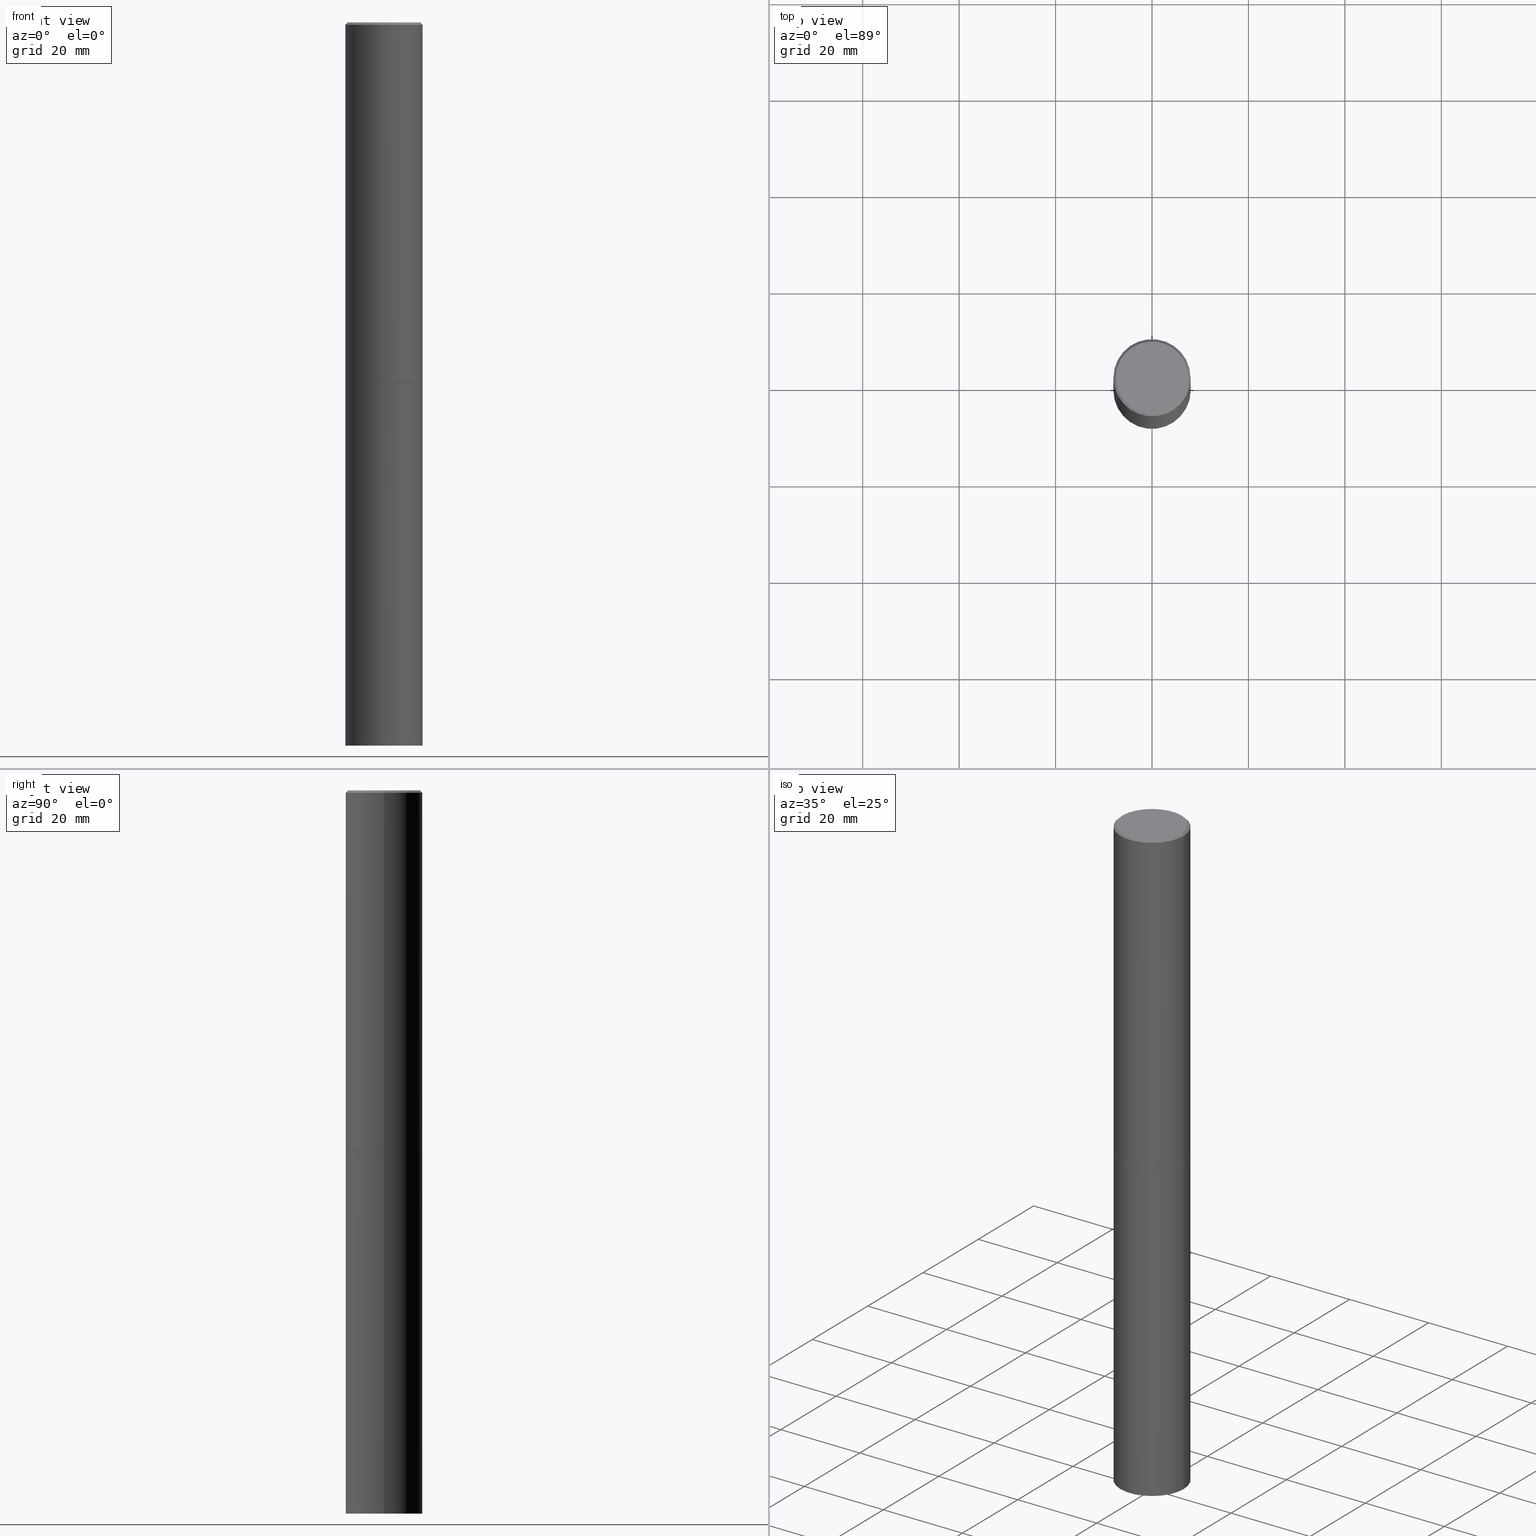
[diagram: canonical four-view strip — front | top / right | iso, engineering-drawing reading convention]
A machine part, canonical four-view strip (front | top / right | iso — engineering-drawing reading convention). The complete STEP part file that produces these views, byte-faithful:
ISO-10303-21;
HEADER;
FILE_DESCRIPTION (( 'STEP AP203' ),
    '1' );
FILE_NAME ('49488.STEP',
    '2024-02-28T23:48:37',
    ( '' ),
    ( '' ),
    'SwSTEP 2.0',
    'SolidWorks 2023',
    '' );
FILE_SCHEMA (( 'CONFIG_CONTROL_DESIGN' ));
ENDSEC;

DATA;
#1 = DIRECTION ( 'NONE',  ( 0.000000000000000000, 0.000000000000000000, 1.000000000000000000 ) ) ;
#2 = ADVANCED_FACE ( 'NONE', ( #137 ), #366, .T. ) ;
#3 = VECTOR ( 'NONE', #33, 39.37007874015748143 ) ;
#4 = CC_DESIGN_PERSON_AND_ORGANIZATION_ASSIGNMENT ( #308, #339, ( #176 ) ) ;
#5 = ORIENTED_EDGE ( 'NONE', *, *, #149, .T. ) ;
#6 = DIRECTION ( 'NONE',  ( 0.7071067811864026886, -2.468850131080739687E-15, 0.7071067811866923458 ) ) ;
#7 = EDGE_CURVE ( 'NONE', #284, #20, #109, .T. ) ;
#8 = CIRCLE ( 'NONE', #136, 0.3149500000000000077 ) ;
#9 = CARTESIAN_POINT ( 'NONE',  ( -0.3149500000000000077, 2.237854346276435590E-15, -1.549218606675782676E-29 ) ) ;
#10 = LINE ( 'NONE', #9, #61 ) ;
#11 = FACE_OUTER_BOUND ( 'NONE', #335, .T. ) ;
#12 = CONICAL_SURFACE ( 'NONE', #291, 0.3139500000000000624, 0.7853981633972434429 ) ;
#13 = AXIS2_PLACEMENT_3D ( 'NONE', #148, #293, #288 ) ;
#14 = DIRECTION ( 'NONE',  ( -2.445468806185136597E-29, 3.491481338843145583E-15, 1.000000000000000000 ) ) ;
#15 = ADVANCED_BREP_SHAPE_REPRESENTATION ( '49488', ( #79, #70, #238 ), #27 ) ;
#16 = CARTESIAN_POINT ( 'NONE',  ( -0.2949499999999996014, 2.094539655171992951E-15, 4.268512490085885145E-18 ) ) ;
#17 = EDGE_CURVE ( 'NONE', #129, #159, #68, .T. ) ;
#18 = EDGE_LOOP ( 'NONE', ( #280, #32 ) ) ;
#19 = CARTESIAN_POINT ( 'NONE',  ( 4.890937612370290675E-31, -6.982962677686316261E-17, -0.02000000000000007327 ) ) ;
#20 = VERTEX_POINT ( 'NONE', #353 ) ;
#21 = APPLICATION_CONTEXT ( 'configuration controlled 3d designs of mechanical parts and assemblies' ) ;
#22 = DIRECTION ( 'NONE',  ( -2.445468806185136597E-29, 3.491481338843145583E-15, 1.000000000000000000 ) ) ;
#23 = ADVANCED_FACE ( 'NONE', ( #37 ), #35, .F. ) ;
#24 = EDGE_LOOP ( 'NONE', ( #111, #276, #194, #245 ) ) ;
#25 = LINE ( 'NONE', #346, #197 ) ;
#26 = CIRCLE ( 'NONE', #230, 0.3149499999999996747 ) ;
#27 =( GEOMETRIC_REPRESENTATION_CONTEXT ( 3 ) GLOBAL_UNCERTAINTY_ASSIGNED_CONTEXT ( ( #78 ) ) GLOBAL_UNIT_ASSIGNED_CONTEXT ( ( #224, #170, #199 ) ) REPRESENTATION_CONTEXT ( 'NONE', 'WORKASPACE' ) );
#28 = AXIS2_PLACEMENT_3D ( 'NONE', #76, #356, #209 ) ;
#29 = ORIENTED_EDGE ( 'NONE', *, *, #7, .T. ) ;
#30 = EDGE_CURVE ( 'NONE', #20, #284, #114, .T. ) ;
#31 = CLOSED_SHELL ( 'NONE', ( #97, #124, #138, #314 ) ) ;
#32 = ORIENTED_EDGE ( 'NONE', *, *, #319, .F. ) ;
#33 = DIRECTION ( 'NONE',  ( -2.445468806185136877E-29, 3.491481338843145188E-15, 1.000000000000000000 ) ) ;
#34 = ADVANCED_FACE ( 'NONE', ( #173 ), #91, .T. ) ;
#35 = PLANE ( 'NONE',  #247 ) ;
#36 = AXIS2_PLACEMENT_3D ( 'NONE', #81, #140, #139 ) ;
#37 = FACE_OUTER_BOUND ( 'NONE', #18, .T. ) ;
#38 = DIRECTION ( 'NONE',  ( 1.000000000000000000, -6.982962677686266711E-15, 4.876176775795936353E-29 ) ) ;
#39 = CARTESIAN_POINT ( 'NONE',  ( -0.3149500000000000077, -1.322626565159373987E-14, -2.952700000000000102 ) ) ;
#40 = EDGE_LOOP ( 'NONE', ( #116, #257 ) ) ;
#41 = AXIS2_PLACEMENT_3D ( 'NONE', #231, #260, #177 ) ;
#42 = DIRECTION ( 'NONE',  ( 1.000000000000000000, -6.982962677686263555E-15, 0.000000000000000000 ) ) ;
#43 = FACE_OUTER_BOUND ( 'NONE', #345, .T. ) ;
#44 = CARTESIAN_POINT ( 'NONE',  ( 7.220735744022852519E-29, -1.030929694920215502E-14, -2.952700000000000102 ) ) ;
#45 = ORIENTED_EDGE ( 'NONE', *, *, #344, .F. ) ;
#46 = DATE_AND_TIME ( #302, #204 ) ;
#47 = DIRECTION ( 'NONE',  ( -2.445468806185136597E-29, 3.491481338843145583E-15, 1.000000000000000000 ) ) ;
#48 = CIRCLE ( 'NONE', #232, 0.3149500000000000077 ) ;
#49 = ORIENTED_EDGE ( 'NONE', *, *, #50, .F. ) ;
#50 = EDGE_CURVE ( 'NONE', #129, #108, #295, .T. ) ;
#51 = VERTEX_POINT ( 'NONE', #174 ) ;
#52 = COORDINATED_UNIVERSAL_TIME_OFFSET ( 5, 0, .BEHIND. ) ;
#53 = APPLICATION_PROTOCOL_DEFINITION ( 'international standard', 'config_control_design', 1994, #21 ) ;
#54 = ORIENTED_EDGE ( 'NONE', *, *, #87, .T. ) ;
#55 = CALENDAR_DATE ( 2024, 28, 2 ) ;
#56 = LOCAL_TIME ( 18, 48, 37.00000000000000000, #313 ) ;
#57 = CARTESIAN_POINT ( 'NONE',  ( 0.000000000000000000, 0.000000000000000000, 0.000000000000000000 ) ) ;
#58 = APPROVAL ( #251, 'UNSPECIFIED' ) ;
#59 = LINE ( 'NONE', #198, #90 ) ;
#60 = SECURITY_CLASSIFICATION ( '', '', #187 ) ;
#61 = VECTOR ( 'NONE', #292, 39.37007874015748143 ) ;
#62 = CARTESIAN_POINT ( 'NONE',  ( 0.3149500000000000077, -1.250508956320060346E-14, -2.951700000000000212 ) ) ;
#63 = DIRECTION ( 'NONE',  ( 1.000000000000000000, -6.982962677686263555E-15, 0.000000000000000000 ) ) ;
#64 = CARTESIAN_POINT ( 'NONE',  ( 7.220735744022853640E-29, -1.030929694920215659E-14, -2.952700000000000546 ) ) ;
#65 = APPROVAL_PERSON_ORGANIZATION ( #156, #157, #277 ) ;
#66 = ADVANCED_FACE ( 'NONE', ( #146 ), #250, .T. ) ;
#67 = AXIS2_PLACEMENT_3D ( 'NONE', #120, #263, #63 ) ;
#68 = LINE ( 'NONE', #94, #282 ) ;
#69 = DIRECTION ( 'NONE',  ( -2.438088387897960049E-29, 3.491481338843145188E-15, 1.000000000000000000 ) ) ;
#70 = MANIFOLD_SOLID_BREP ( 'Body-Move/Copy2[2]', #326 ) ;
#71 = FACE_OUTER_BOUND ( 'NONE', #216, .T. ) ;
#72 = CIRCLE ( 'NONE', #320, 0.3149500000000000077 ) ;
#73 = CARTESIAN_POINT ( 'NONE',  ( 2.059624841783561302E-15, 0.2949499999999996014, -1.027678164646734185E-15 ) ) ;
#74 = EDGE_CURVE ( 'NONE', #284, #85, #10, .T. ) ;
#75 = COORDINATED_UNIVERSAL_TIME_OFFSET ( 5, 0, .BEHIND. ) ;
#76 = CARTESIAN_POINT ( 'NONE',  ( 7.220735744022853640E-29, -1.030929694920215659E-14, -2.952700000000000546 ) ) ;
#77 = ORIENTED_EDGE ( 'NONE', *, *, #144, .F. ) ;
#78 = UNCERTAINTY_MEASURE_WITH_UNIT (LENGTH_MEASURE( 1.000000000000000082E-05 ), #224, 'distance_accuracy_value', 'NONE');
#79 = MANIFOLD_SOLID_BREP ( 'Body-Move/Copy2[1]', #31 ) ;
#80 = VERTEX_POINT ( 'NONE', #121 ) ;
#81 = CARTESIAN_POINT ( 'NONE',  ( -1.043851414335219820E-46, 1.490343170380447200E-32, 4.268512490100411279E-18 ) ) ;
#82 = AXIS2_PLACEMENT_3D ( 'NONE', #57, #14, #321 ) ;
#83 = ORIENTED_EDGE ( 'NONE', *, *, #290, .F. ) ;
#84 = CARTESIAN_POINT ( 'NONE',  ( 0.000000000000000000, 0.000000000000000000, 0.000000000000000000 ) ) ;
#85 = VERTEX_POINT ( 'NONE', #39 ) ;
#86 = PERSON_AND_ORGANIZATION ( #215, #127 ) ;
#87 = EDGE_CURVE ( 'NONE', #338, #80, #233, .T. ) ;
#88 = ORIENTED_EDGE ( 'NONE', *, *, #30, .T. ) ;
#89 = DIRECTION ( 'NONE',  ( 1.000000000000000000, -6.982962677686263555E-15, 0.000000000000000000 ) ) ;
#90 = VECTOR ( 'NONE', #318, 39.37007874015748143 ) ;
#91 = CONICAL_SURFACE ( 'NONE', #341, 0.3149499999999996747, 0.7853981633974479459 ) ;
#92 = DIRECTION ( 'NONE',  ( -2.445468806185136597E-29, 3.491481338843145583E-15, 1.000000000000000000 ) ) ;
#93 = VECTOR ( 'NONE', #6, 39.37007874015748143 ) ;
#94 = CARTESIAN_POINT ( 'NONE',  ( -0.3149499999999998967, 2.237854346276434801E-15, -1.549218606675782116E-29 ) ) ;
#95 = DIMENSIONAL_EXPONENTS ( 1.000000000000000000, 0.000000000000000000, 0.000000000000000000, 0.000000000000000000, 0.000000000000000000, 0.000000000000000000, 0.000000000000000000 ) ;
#96 = CYLINDRICAL_SURFACE ( 'NONE', #364, 0.3149500000000000077 ) ;
#97 = ADVANCED_FACE ( 'NONE', ( #98 ), #96, .T. ) ;
#98 = FACE_OUTER_BOUND ( 'NONE', #142, .T. ) ;
#99 = AXIS2_PLACEMENT_3D ( 'NONE', #104, #214, #340 ) ;
#100 = CIRCLE ( 'NONE', #296, 0.3149499999999996747 ) ;
#101 = DIRECTION ( 'NONE',  ( 2.438088387897960049E-29, -3.491481338843145188E-15, -1.000000000000000000 ) ) ;
#102 = PLANE ( 'NONE',  #256 ) ;
#103 = DATE_AND_TIME ( #221, #150 ) ;
#104 = CARTESIAN_POINT ( 'NONE',  ( 7.220735744022853640E-29, -1.030929694920215659E-14, -2.952700000000000546 ) ) ;
#105 = ORIENTED_EDGE ( 'NONE', *, *, #115, .T. ) ;
#106 = PERSON_AND_ORGANIZATION ( #215, #127 ) ;
#107 = FACE_OUTER_BOUND ( 'NONE', #242, .T. ) ;
#108 = VERTEX_POINT ( 'NONE', #62 ) ;
#109 = CIRCLE ( 'NONE', #67, 0.3149500000000000077 ) ;
#110 = ORIENTED_EDGE ( 'NONE', *, *, #87, .F. ) ;
#111 = ORIENTED_EDGE ( 'NONE', *, *, #329, .T. ) ;
#112 = CARTESIAN_POINT ( 'NONE',  ( 7.218290275216666916E-29, -1.030580546786331359E-14, -2.951700000000000212 ) ) ;
#113 = APPROVAL_PERSON_ORGANIZATION ( #278, #58, #195 ) ;
#114 = CIRCLE ( 'NONE', #41, 0.3149500000000000077 ) ;
#115 = EDGE_CURVE ( 'NONE', #304, #338, #134, .T. ) ;
#116 = ORIENTED_EDGE ( 'NONE', *, *, #30, .F. ) ;
#117 = APPROVAL_PERSON_ORGANIZATION ( #212, #154, #332 ) ;
#118 = CARTESIAN_POINT ( 'NONE',  ( 7.220735744022852519E-29, -1.030929694920215502E-14, -2.952700000000000102 ) ) ;
#119 = EDGE_CURVE ( 'NONE', #108, #80, #351, .T. ) ;
#120 = CARTESIAN_POINT ( 'NONE',  ( 1.444171603492632270E-28, -2.061894304653819197E-14, -5.905499999999999972 ) ) ;
#121 = CARTESIAN_POINT ( 'NONE',  ( 0.3149499999999996747, -2.230543471175005083E-15, -0.02000000000000007327 ) ) ;
#122 = CARTESIAN_POINT ( 'NONE',  ( 2.199284095337361657E-15, 0.3149499999999896827, -2.952700000000000990 ) ) ;
#123 = AXIS2_PLACEMENT_3D ( 'NONE', #128, #241, #218 ) ;
#124 = ADVANCED_FACE ( 'NONE', ( #352 ), #147, .T. ) ;
#125 = CYLINDRICAL_SURFACE ( 'NONE', #123, 0.3149500000000000077 ) ;
#126 = DATE_TIME_ROLE ( 'classification_date' ) ;
#127 = ORGANIZATION ( 'UNSPECIFIED', 'UNSPECIFIED', '' ) ;
#128 = CARTESIAN_POINT ( 'NONE',  ( 0.000000000000000000, 0.000000000000000000, 0.000000000000000000 ) ) ;
#129 = VERTEX_POINT ( 'NONE', #207 ) ;
#130 = APPROVAL_STATUS ( 'not_yet_approved' ) ;
#131 = DIRECTION ( 'NONE',  ( -2.445468806185136597E-29, 3.491481338843145583E-15, 1.000000000000000000 ) ) ;
#132 = ORIENTED_EDGE ( 'NONE', *, *, #281, .T. ) ;
#133 = ORIENTED_EDGE ( 'NONE', *, *, #323, .T. ) ;
#134 = CIRCLE ( 'NONE', #264, 0.2949499999999996014 ) ;
#135 = AXIS2_PLACEMENT_3D ( 'NONE', #213, #131, #305 ) ;
#136 = AXIS2_PLACEMENT_3D ( 'NONE', #118, #303, #42 ) ;
#137 = FACE_OUTER_BOUND ( 'NONE', #24, .T. ) ;
#138 = ADVANCED_FACE ( 'NONE', ( #11 ), #324, .F. ) ;
#139 = DIRECTION ( 'NONE',  ( 1.000000000000000000, -6.982962677686266711E-15, 4.876053491004741073E-29 ) ) ;
#140 = DIRECTION ( 'NONE',  ( -2.445468806185136597E-29, 3.491481338843145583E-15, 1.000000000000000000 ) ) ;
#141 = EDGE_CURVE ( 'NONE', #163, #108, #200, .T. ) ;
#142 = EDGE_LOOP ( 'NONE', ( #88, #312, #219, #360 ) ) ;
#143 = DIRECTION ( 'NONE',  ( -1.000000000000000000, 6.982962677686265922E-15, -4.876176775795935793E-29 ) ) ;
#144 = EDGE_CURVE ( 'NONE', #85, #196, #8, .T. ) ;
#145 = CARTESIAN_POINT ( 'NONE',  ( 4.890937612370290675E-31, -6.982962677686316261E-17, -0.02000000000000007327 ) ) ;
#146 = FACE_OUTER_BOUND ( 'NONE', #343, .T. ) ;
#147 = PLANE ( 'NONE',  #206 ) ;
#148 = CARTESIAN_POINT ( 'NONE',  ( 7.218290275216666916E-29, -1.030580546786331359E-14, -2.951700000000000212 ) ) ;
#149 = EDGE_CURVE ( 'NONE', #163, #51, #350, .T. ) ;
#150 = LOCAL_TIME ( 18, 48, 37.00000000000000000, #75 ) ;
#151 = ORIENTED_EDGE ( 'NONE', *, *, #115, .F. ) ;
#152 = VECTOR ( 'NONE', #289, 39.37007874015748143 ) ;
#153 = DIRECTION ( 'NONE',  ( -2.445468806185136597E-29, 3.491481338843145583E-15, 1.000000000000000000 ) ) ;
#154 = APPROVAL ( #243, 'UNSPECIFIED' ) ;
#155 = DIRECTION ( 'NONE',  ( -2.445468806185136597E-29, 3.491481338843145583E-15, 1.000000000000000000 ) ) ;
#156 = PERSON_AND_ORGANIZATION ( #215, #127 ) ;
#157 = APPROVAL ( #130, 'UNSPECIFIED' ) ;
#158 = DIRECTION ( 'NONE',  ( -1.000000000000000000, 6.982962677686265922E-15, -4.876176775795935793E-29 ) ) ;
#159 = VERTEX_POINT ( 'NONE', #301 ) ;
#160 = CONICAL_SURFACE ( 'NONE', #135, 0.3139500000000000624, 0.7853981633972434429 ) ;
#161 = APPROVAL_DATE_TIME ( #46, #157 ) ;
#162 = DIRECTION ( 'NONE',  ( 1.000000000000000000, -6.982962677686266711E-15, 0.000000000000000000 ) ) ;
#163 = VERTEX_POINT ( 'NONE', #185 ) ;
#164 = PERSON_AND_ORGANIZATION_ROLE ( 'classification_officer' ) ;
#165 = ORIENTED_EDGE ( 'NONE', *, *, #50, .T. ) ;
#166 = APPROVAL_DATE_TIME ( #336, #154 ) ;
#167 = ORIENTED_EDGE ( 'NONE', *, *, #144, .T. ) ;
#168 = DATE_AND_TIME ( #55, #56 ) ;
#169 = ORIENTED_EDGE ( 'NONE', *, *, #171, .T. ) ;
#170 =( NAMED_UNIT ( * ) PLANE_ANGLE_UNIT ( ) SI_UNIT ( $, .RADIAN. ) );
#171 = EDGE_CURVE ( 'NONE', #196, #85, #48, .T. ) ;
#172 = CARTESIAN_POINT ( 'NONE',  ( 7.220735744022853640E-29, -1.030929694920215659E-14, -2.952700000000000546 ) ) ;
#173 = FACE_OUTER_BOUND ( 'NONE', #274, .T. ) ;
#174 = CARTESIAN_POINT ( 'NONE',  ( -0.3139500000000000624, -8.073249575935100004E-15, -2.952700000000000546 ) ) ;
#175 = ADVANCED_FACE ( 'NONE', ( #71 ), #102, .F. ) ;
#176 = PRODUCT_DEFINITION_FORMATION_WITH_SPECIFIED_SOURCE ( 'ANY', '', #286, .NOT_KNOWN. ) ;
#177 = DIRECTION ( 'NONE',  ( 1.000000000000000000, -6.982962677686263555E-15, 0.000000000000000000 ) ) ;
#178 = DIRECTION ( 'NONE',  ( 2.445468806185136597E-29, -3.491481338843145583E-15, -1.000000000000000000 ) ) ;
#179 = DIRECTION ( 'NONE',  ( -1.000000000000000000, 6.982962677686265922E-15, -4.876176775795935793E-29 ) ) ;
#180 = PRODUCT_RELATED_PRODUCT_CATEGORY ( 'detail', '', ( #286 ) ) ;
#181 = CC_DESIGN_APPROVAL ( #157, ( #176 ) ) ;
#182 = CARTESIAN_POINT ( 'NONE',  ( 0.3149500000000000077, -1.250858104453944331E-14, -2.952700000000000102 ) ) ;
#183 = PRODUCT_DEFINITION ( 'UNKNOWN', '', #176, #269 ) ;
#184 = CALENDAR_DATE ( 2024, 28, 2 ) ;
#185 = CARTESIAN_POINT ( 'NONE',  ( 0.3139500000000000624, -1.250159808186176045E-14, -2.952700000000000546 ) ) ;
#186 = ORIENTED_EDGE ( 'NONE', *, *, #344, .T. ) ;
#187 = SECURITY_CLASSIFICATION_LEVEL ( 'unclassified' ) ;
#188 = CARTESIAN_POINT ( 'NONE',  ( 0.000000000000000000, 0.000000000000000000, 0.000000000000000000 ) ) ;
#189 = ORIENTED_EDGE ( 'NONE', *, *, #281, .F. ) ;
#190 = DATE_AND_TIME ( #357, #271 ) ;
#191 = CARTESIAN_POINT ( 'NONE',  ( -0.3149500000000000077, -1.322626565159373987E-14, -5.905499999999999972 ) ) ;
#192 = ORIENTED_EDGE ( 'NONE', *, *, #329, .F. ) ;
#193 = DIRECTION ( 'NONE',  ( 1.000000000000000000, 0.000000000000000000, 0.000000000000000000 ) ) ;
#194 = ORIENTED_EDGE ( 'NONE', *, *, #267, .F. ) ;
#195 = APPROVAL_ROLE ( '' ) ;
#196 = VERTEX_POINT ( 'NONE', #182 ) ;
#197 = VECTOR ( 'NONE', #362, 39.37007874015748143 ) ;
#198 = CARTESIAN_POINT ( 'NONE',  ( 0.3149500000000000077, -2.199284095337289871E-15, 1.535751875536930130E-29 ) ) ;
#199 =( NAMED_UNIT ( * ) SI_UNIT ( $, .STERADIAN. ) SOLID_ANGLE_UNIT ( ) );
#200 = LINE ( 'NONE', #258, #93 ) ;
#201 = AXIS2_PLACEMENT_3D ( 'NONE', #122, #328, #179 ) ;
#202 = DIRECTION ( 'NONE',  ( -2.445468806185136877E-29, 3.491481338843145188E-15, 1.000000000000000000 ) ) ;
#203 = CARTESIAN_POINT ( 'NONE',  ( 0.3149499999999998967, -2.199284095337288688E-15, 1.535751875536929289E-29 ) ) ;
#204 = LOCAL_TIME ( 18, 48, 37.00000000000000000, #217 ) ;
#205 = CARTESIAN_POINT ( 'NONE',  ( -1.043851414335219820E-46, 1.490343170380447200E-32, 4.268512490100411279E-18 ) ) ;
#206 = AXIS2_PLACEMENT_3D ( 'NONE', #261, #101, #143 ) ;
#207 = CARTESIAN_POINT ( 'NONE',  ( -0.3149500000000000077, -2.949963201043651274E-15, -2.951700000000000212 ) ) ;
#208 = CC_DESIGN_PERSON_AND_ORGANIZATION_ASSIGNMENT ( #106, #164, ( #60 ) ) ;
#209 = DIRECTION ( 'NONE',  ( 1.000000000000000000, -6.982962677686265133E-15, 0.000000000000000000 ) ) ;
#210 = PERSON_AND_ORGANIZATION ( #215, #127 ) ;
#211 = ADVANCED_FACE ( 'NONE', ( #43 ), #160, .T. ) ;
#212 = PERSON_AND_ORGANIZATION ( #215, #127 ) ;
#213 = CARTESIAN_POINT ( 'NONE',  ( 7.220735744022853640E-29, -1.030929694920215659E-14, -2.952700000000000546 ) ) ;
#214 = DIRECTION ( 'NONE',  ( -2.445468806185136597E-29, 3.491481338843145583E-15, 1.000000000000000000 ) ) ;
#215 = PERSON ( 'UNSPECIFIED', 'UNSPECIFIED', 'UNSPECIFIED', ('UNSPECIFIED'), ('UNSPECIFIED'), ('UNSPECIFIED') ) ;
#216 = EDGE_LOOP ( 'NONE', ( #105, #133 ) ) ;
#217 = COORDINATED_UNIVERSAL_TIME_OFFSET ( 5, 0, .BEHIND. ) ;
#218 = DIRECTION ( 'NONE',  ( 1.000000000000000000, -6.982962677686266711E-15, 4.876176775795936353E-29 ) ) ;
#219 = ORIENTED_EDGE ( 'NONE', *, *, #171, .F. ) ;
#220 = CIRCLE ( 'NONE', #36, 0.2949499999999996014 ) ;
#221 = CALENDAR_DATE ( 2024, 28, 2 ) ;
#222 = APPLICATION_PROTOCOL_DEFINITION ( 'international standard', 'config_control_design', 1994, #317 ) ;
#223 = ORIENTED_EDGE ( 'NONE', *, *, #119, .T. ) ;
#224 =( CONVERSION_BASED_UNIT ( 'INCH', #285 ) LENGTH_UNIT ( ) NAMED_UNIT ( #95 ) );
#225 = ORIENTED_EDGE ( 'NONE', *, *, #17, .F. ) ;
#226 = PERSON_AND_ORGANIZATION_ROLE ( 'design_owner' ) ;
#227 = CC_DESIGN_DATE_AND_TIME_ASSIGNMENT ( #190, #300, ( #183 ) ) ;
#228 = CIRCLE ( 'NONE', #99, 0.3139500000000000624 ) ;
#229 = CARTESIAN_POINT ( 'NONE',  ( 4.890937612370290675E-31, -6.982962677686316261E-17, -0.02000000000000007327 ) ) ;
#230 = AXIS2_PLACEMENT_3D ( 'NONE', #19, #266, #270 ) ;
#231 = CARTESIAN_POINT ( 'NONE',  ( 1.444171603492632270E-28, -2.061894304653819197E-14, -5.905499999999999972 ) ) ;
#232 = AXIS2_PLACEMENT_3D ( 'NONE', #44, #153, #358 ) ;
#233 = LINE ( 'NONE', #234, #152 ) ;
#234 = CARTESIAN_POINT ( 'NONE',  ( 0.3149499999999996747, -2.230543471175005083E-15, -0.02000000000000007327 ) ) ;
#235 = DIRECTION ( 'NONE',  ( -1.000000000000000000, 6.982962677686266711E-15, 0.000000000000000000 ) ) ;
#236 = LINE ( 'NONE', #297, #262 ) ;
#237 = PERSON_AND_ORGANIZATION_ROLE ( 'creator' ) ;
#238 = AXIS2_PLACEMENT_3D ( 'NONE', #84, #1, #193 ) ;
#239 = PRODUCT_DEFINITION_SHAPE ( 'NONE', 'NONE',  #183 ) ;
#240 = COORDINATED_UNIVERSAL_TIME_OFFSET ( 5, 0, .BEHIND. ) ;
#241 = DIRECTION ( 'NONE',  ( -2.445468806185136597E-29, 3.491481338843145583E-15, 1.000000000000000000 ) ) ;
#242 = EDGE_LOOP ( 'NONE', ( #315, #29, #252, #77 ) ) ;
#243 = APPROVAL_STATUS ( 'not_yet_approved' ) ;
#244 = CYLINDRICAL_SURFACE ( 'NONE', #325, 0.3149499999999998967 ) ;
#245 = ORIENTED_EDGE ( 'NONE', *, *, #119, .F. ) ;
#246 = DIRECTION ( 'NONE',  ( -2.445468806185136597E-29, 3.491481338843145583E-15, 1.000000000000000000 ) ) ;
#247 = AXIS2_PLACEMENT_3D ( 'NONE', #64, #69, #354 ) ;
#248 = ORIENTED_EDGE ( 'NONE', *, *, #141, .F. ) ;
#249 = CC_DESIGN_DATE_AND_TIME_ASSIGNMENT ( #103, #126, ( #60 ) ) ;
#250 = CONICAL_SURFACE ( 'NONE', #299, 0.3149499999999996747, 0.7853981633974479459 ) ;
#251 = APPROVAL_STATUS ( 'not_yet_approved' ) ;
#252 = ORIENTED_EDGE ( 'NONE', *, *, #334, .T. ) ;
#253 = CC_DESIGN_PERSON_AND_ORGANIZATION_ASSIGNMENT ( #86, #226, ( #286 ) ) ;
#254 = PERSON_AND_ORGANIZATION ( #215, #127 ) ;
#255 = DIRECTION ( 'NONE',  ( 1.000000000000000000, -6.982962677686265133E-15, 0.000000000000000000 ) ) ;
#256 = AXIS2_PLACEMENT_3D ( 'NONE', #73, #330, #158 ) ;
#257 = ORIENTED_EDGE ( 'NONE', *, *, #7, .F. ) ;
#258 = CARTESIAN_POINT ( 'NONE',  ( 0.3139500000000000624, -1.250159808186176045E-14, -2.952700000000000546 ) ) ;
#259 = DIRECTION ( 'NONE',  ( -2.445468806185136597E-29, 3.491481338843145583E-15, 1.000000000000000000 ) ) ;
#260 = DIRECTION ( 'NONE',  ( -2.445468806185136597E-29, 3.491481338843145583E-15, 1.000000000000000000 ) ) ;
#261 = CARTESIAN_POINT ( 'NONE',  ( 2.199284095337433838E-15, 0.3149499999999793576, -5.905500000000000860 ) ) ;
#262 = VECTOR ( 'NONE', #273, 39.37007874015748143 ) ;
#263 = DIRECTION ( 'NONE',  ( -2.445468806185136597E-29, 3.491481338843145583E-15, 1.000000000000000000 ) ) ;
#264 = AXIS2_PLACEMENT_3D ( 'NONE', #205, #259, #327 ) ;
#265 = ORIENTED_EDGE ( 'NONE', *, *, #290, .T. ) ;
#266 = DIRECTION ( 'NONE',  ( -2.445468806185136597E-29, 3.491481338843145583E-15, 1.000000000000000000 ) ) ;
#267 = EDGE_CURVE ( 'NONE', #80, #159, #100, .T. ) ;
#268 = SHAPE_DEFINITION_REPRESENTATION ( #239, #15 ) ;
#269 = DESIGN_CONTEXT ( 'detailed design', #317, 'design' ) ;
#270 = DIRECTION ( 'NONE',  ( 1.000000000000000000, -6.982962677686266711E-15, 0.000000000000000000 ) ) ;
#271 = LOCAL_TIME ( 18, 48, 37.00000000000000000, #52 ) ;
#272 = ORIENTED_EDGE ( 'NONE', *, *, #323, .F. ) ;
#273 = DIRECTION ( 'NONE',  ( -0.7071067811864026886, 7.493145998869830357E-15, 0.7071067811866923458 ) ) ;
#274 = EDGE_LOOP ( 'NONE', ( #272, #54, #307, #45 ) ) ;
#275 = CC_DESIGN_PERSON_AND_ORGANIZATION_ASSIGNMENT ( #210, #355, ( #176 ) ) ;
#276 = ORIENTED_EDGE ( 'NONE', *, *, #17, .T. ) ;
#277 = APPROVAL_ROLE ( '' ) ;
#278 = PERSON_AND_ORGANIZATION ( #215, #127 ) ;
#279 = CC_DESIGN_APPROVAL ( #58, ( #183 ) ) ;
#280 = ORIENTED_EDGE ( 'NONE', *, *, #149, .F. ) ;
#281 = EDGE_CURVE ( 'NONE', #51, #129, #236, .T. ) ;
#282 = VECTOR ( 'NONE', #202, 39.37007874015748143 ) ;
#283 = APPROVAL_DATE_TIME ( #168, #58 ) ;
#284 = VERTEX_POINT ( 'NONE', #191 ) ;
#285 = LENGTH_MEASURE_WITH_UNIT ( LENGTH_MEASURE( 0.02539999999999999897 ), #287 );
#286 = PRODUCT ( '49488', '49488', '', ( #347 ) ) ;
#287 =( LENGTH_UNIT ( ) NAMED_UNIT ( * ) SI_UNIT ( $, .METRE. ) );
#288 = DIRECTION ( 'NONE',  ( 1.000000000000000000, -6.982962677686263555E-15, 0.000000000000000000 ) ) ;
#289 = DIRECTION ( 'NONE',  ( 0.7071067811865472397, -7.319954787623254468E-15, -0.7071067811865477948 ) ) ;
#290 = EDGE_CURVE ( 'NONE', #159, #80, #26, .T. ) ;
#291 = AXIS2_PLACEMENT_3D ( 'NONE', #172, #246, #255 ) ;
#292 = DIRECTION ( 'NONE',  ( -2.445468806185136877E-29, 3.491481338843145188E-15, 1.000000000000000000 ) ) ;
#293 = DIRECTION ( 'NONE',  ( -2.445468806185136597E-29, 3.491481338843145583E-15, 1.000000000000000000 ) ) ;
#294 = DIRECTION ( 'NONE',  ( 2.445468806185136597E-29, -3.491481338843145583E-15, -1.000000000000000000 ) ) ;
#295 = CIRCLE ( 'NONE', #13, 0.3149500000000000077 ) ;
#296 = AXIS2_PLACEMENT_3D ( 'NONE', #309, #47, #162 ) ;
#297 = CARTESIAN_POINT ( 'NONE',  ( -0.3139500000000000624, -8.078548030283322406E-15, -2.952700000000000546 ) ) ;
#298 = ADVANCED_FACE ( 'NONE', ( #333 ), #244, .T. ) ;
#299 = AXIS2_PLACEMENT_3D ( 'NONE', #229, #294, #235 ) ;
#300 = DATE_TIME_ROLE ( 'creation_date' ) ;
#301 = CARTESIAN_POINT ( 'NONE',  ( -0.3149499999999996747, 2.129454468560424206E-15, -0.02000000000000007327 ) ) ;
#302 = CALENDAR_DATE ( 2024, 28, 2 ) ;
#303 = DIRECTION ( 'NONE',  ( -2.445468806185136597E-29, 3.491481338843145583E-15, 1.000000000000000000 ) ) ;
#304 = VERTEX_POINT ( 'NONE', #16 ) ;
#305 = DIRECTION ( 'NONE',  ( 1.000000000000000000, -6.982962677686265133E-15, 0.000000000000000000 ) ) ;
#306 = LOCAL_TIME ( 18, 48, 37.00000000000000000, #240 ) ;
#307 = ORIENTED_EDGE ( 'NONE', *, *, #267, .T. ) ;
#308 = PERSON_AND_ORGANIZATION ( #215, #127 ) ;
#309 = CARTESIAN_POINT ( 'NONE',  ( 4.890937612370290675E-31, -6.982962677686316261E-17, -0.02000000000000007327 ) ) ;
#310 = EDGE_LOOP ( 'NONE', ( #225, #165, #223, #83 ) ) ;
#311 = FACE_OUTER_BOUND ( 'NONE', #365, .T. ) ;
#312 = ORIENTED_EDGE ( 'NONE', *, *, #74, .T. ) ;
#313 = COORDINATED_UNIVERSAL_TIME_OFFSET ( 5, 0, .BEHIND. ) ;
#314 = ADVANCED_FACE ( 'NONE', ( #107 ), #125, .T. ) ;
#315 = ORIENTED_EDGE ( 'NONE', *, *, #74, .F. ) ;
#316 = CARTESIAN_POINT ( 'NONE',  ( 0.2949499999999996014, -2.127023677808857708E-15, 4.268512490115050658E-18 ) ) ;
#317 = APPLICATION_CONTEXT ( 'configuration controlled 3d designs of mechanical parts and assemblies' ) ;
#318 = DIRECTION ( 'NONE',  ( -2.445468806185136877E-29, 3.491481338843145188E-15, 1.000000000000000000 ) ) ;
#319 = EDGE_CURVE ( 'NONE', #51, #163, #228, .T. ) ;
#320 = AXIS2_PLACEMENT_3D ( 'NONE', #112, #22, #89 ) ;
#321 = DIRECTION ( 'NONE',  ( 1.000000000000000000, -6.982962677686265922E-15, 4.876176775795935232E-29 ) ) ;
#322 = DIRECTION ( 'NONE',  ( -1.000000000000000000, 6.982962677686266711E-15, 0.000000000000000000 ) ) ;
#323 = EDGE_CURVE ( 'NONE', #338, #304, #220, .T. ) ;
#324 = PLANE ( 'NONE',  #201 ) ;
#325 = AXIS2_PLACEMENT_3D ( 'NONE', #188, #155, #337 ) ;
#326 = CLOSED_SHELL ( 'NONE', ( #211, #2, #34, #66, #298, #348, #23, #175 ) ) ;
#327 = DIRECTION ( 'NONE',  ( 1.000000000000000000, -6.982962677686266711E-15, 4.876053491004741073E-29 ) ) ;
#328 = DIRECTION ( 'NONE',  ( 2.438088387897960049E-29, -3.491481338843145188E-15, -1.000000000000000000 ) ) ;
#329 = EDGE_CURVE ( 'NONE', #108, #129, #72, .T. ) ;
#330 = DIRECTION ( 'NONE',  ( 2.438088387897960049E-29, -3.491481338843145188E-15, -1.000000000000000000 ) ) ;
#331 = CC_DESIGN_APPROVAL ( #154, ( #60 ) ) ;
#332 = APPROVAL_ROLE ( '' ) ;
#333 = FACE_OUTER_BOUND ( 'NONE', #310, .T. ) ;
#334 = EDGE_CURVE ( 'NONE', #20, #196, #59, .T. ) ;
#335 = EDGE_LOOP ( 'NONE', ( #169, #167 ) ) ;
#336 = DATE_AND_TIME ( #184, #306 ) ;
#337 = DIRECTION ( 'NONE',  ( 1.000000000000000000, -6.982962677686265922E-15, 4.876176775795935232E-29 ) ) ;
#338 = VERTEX_POINT ( 'NONE', #316 ) ;
#339 = PERSON_AND_ORGANIZATION_ROLE ( 'design_supplier' ) ;
#340 = DIRECTION ( 'NONE',  ( 1.000000000000000000, -6.982962677686265133E-15, 0.000000000000000000 ) ) ;
#341 = AXIS2_PLACEMENT_3D ( 'NONE', #145, #178, #322 ) ;
#342 = ORIENTED_EDGE ( 'NONE', *, *, #319, .T. ) ;
#343 = EDGE_LOOP ( 'NONE', ( #110, #151, #186, #265 ) ) ;
#344 = EDGE_CURVE ( 'NONE', #304, #159, #25, .T. ) ;
#345 = EDGE_LOOP ( 'NONE', ( #5, #132, #192, #248 ) ) ;
#346 = CARTESIAN_POINT ( 'NONE',  ( -0.3149499999999996747, 2.129454468560424206E-15, -0.02000000000000007327 ) ) ;
#347 = MECHANICAL_CONTEXT ( 'NONE', #21, 'mechanical' ) ;
#348 = ADVANCED_FACE ( 'NONE', ( #311 ), #12, .T. ) ;
#349 = CARTESIAN_POINT ( 'NONE',  ( 0.000000000000000000, 0.000000000000000000, 0.000000000000000000 ) ) ;
#350 = CIRCLE ( 'NONE', #28, 0.3139500000000000624 ) ;
#351 = LINE ( 'NONE', #203, #3 ) ;
#352 = FACE_OUTER_BOUND ( 'NONE', #40, .T. ) ;
#353 = CARTESIAN_POINT ( 'NONE',  ( 0.3149500000000000077, -2.281822714187548341E-14, -5.905499999999999972 ) ) ;
#354 = DIRECTION ( 'NONE',  ( 1.000000000000000000, -6.982962677686265922E-15, 4.876176775795935793E-29 ) ) ;
#355 = PERSON_AND_ORGANIZATION_ROLE ( 'creator' ) ;
#356 = DIRECTION ( 'NONE',  ( -2.445468806185136597E-29, 3.491481338843145583E-15, 1.000000000000000000 ) ) ;
#357 = CALENDAR_DATE ( 2024, 28, 2 ) ;
#358 = DIRECTION ( 'NONE',  ( 1.000000000000000000, -6.982962677686263555E-15, 0.000000000000000000 ) ) ;
#359 = CC_DESIGN_PERSON_AND_ORGANIZATION_ASSIGNMENT ( #254, #237, ( #183 ) ) ;
#360 = ORIENTED_EDGE ( 'NONE', *, *, #334, .F. ) ;
#361 = ORIENTED_EDGE ( 'NONE', *, *, #141, .T. ) ;
#362 = DIRECTION ( 'NONE',  ( -0.7071067811865472397, 2.468850131082253905E-15, -0.7071067811865477948 ) ) ;
#363 = CC_DESIGN_SECURITY_CLASSIFICATION ( #60, ( #176 ) ) ;
#364 = AXIS2_PLACEMENT_3D ( 'NONE', #349, #92, #38 ) ;
#365 = EDGE_LOOP ( 'NONE', ( #189, #342, #361, #49 ) ) ;
#366 = CYLINDRICAL_SURFACE ( 'NONE', #82, 0.3149499999999998967 ) ;
ENDSEC;
END-ISO-10303-21;
